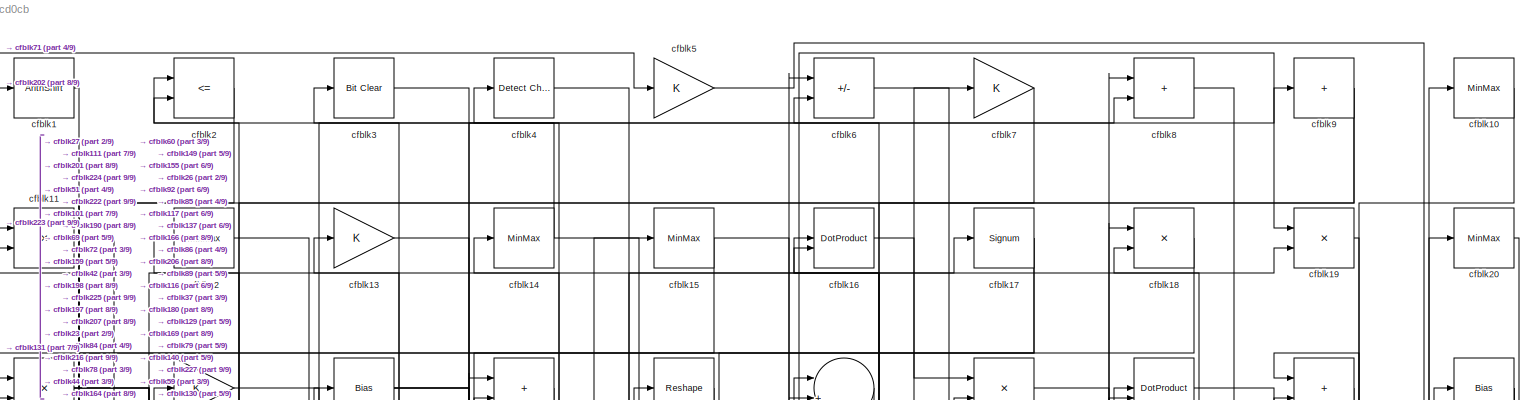
[diagram: root canvas - part 1/9, full width, top band]
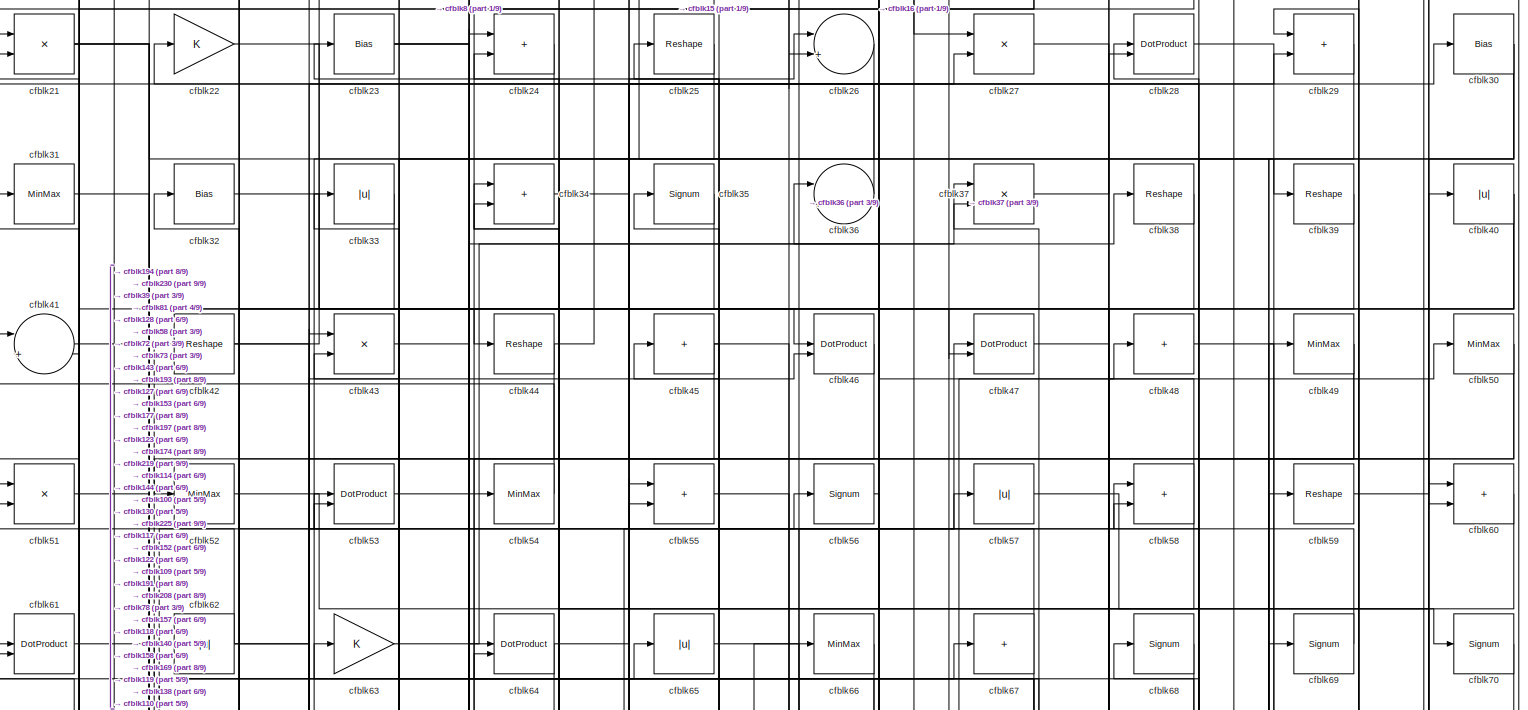
[diagram: root canvas - part 2/9, full width, top band]
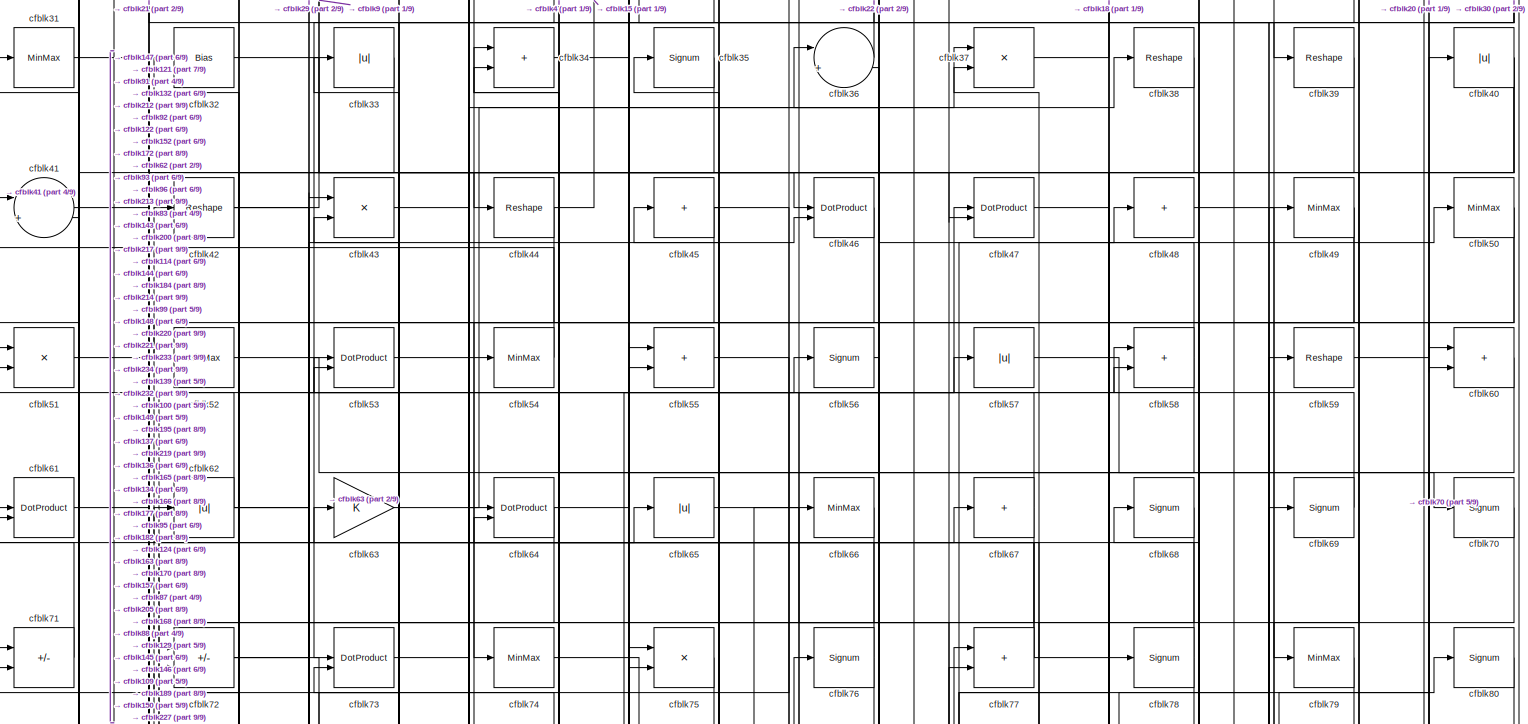
[diagram: root canvas - part 3/9, full width, top band]
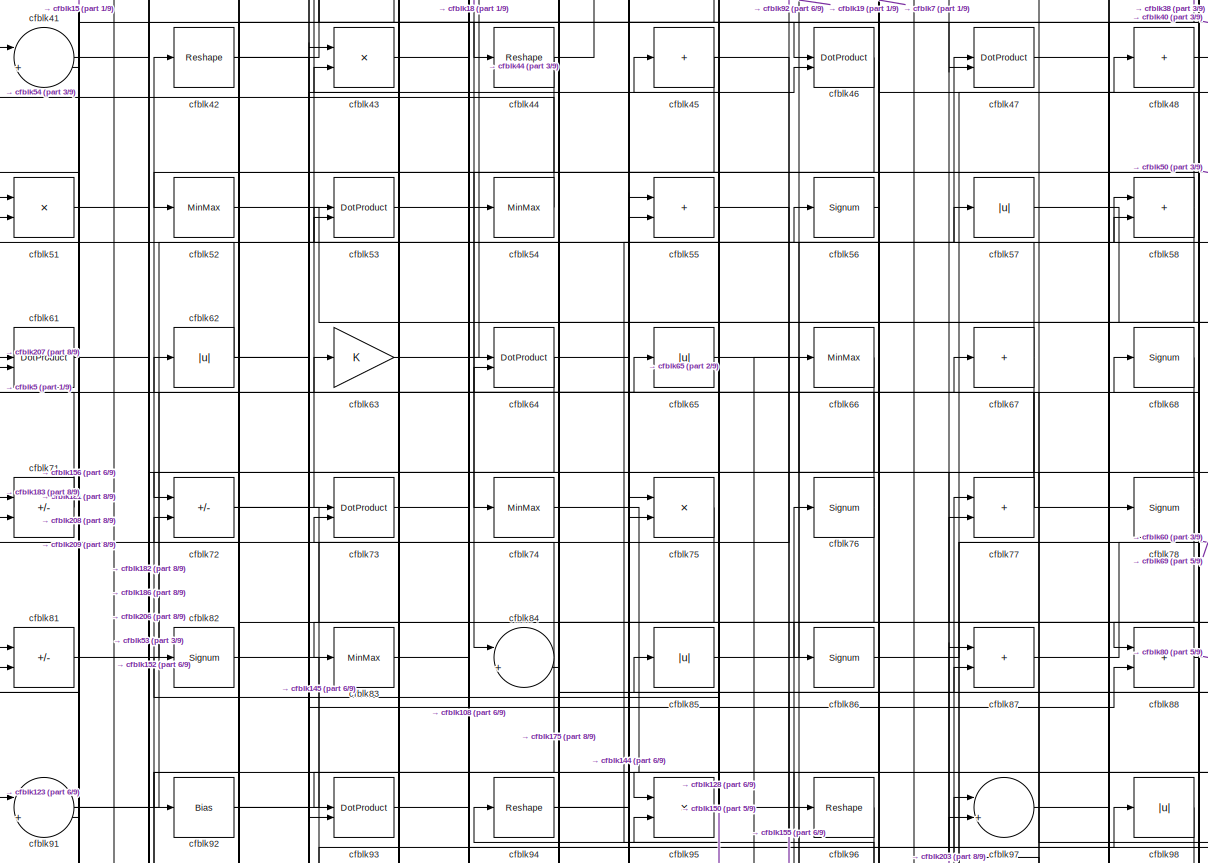
[diagram: root canvas - part 4/9, full width, top band]
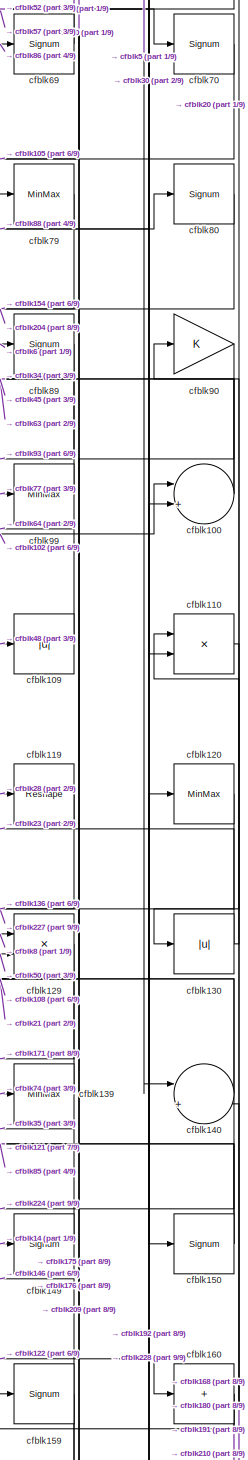
[diagram: root canvas - part 5/9, middle right region]
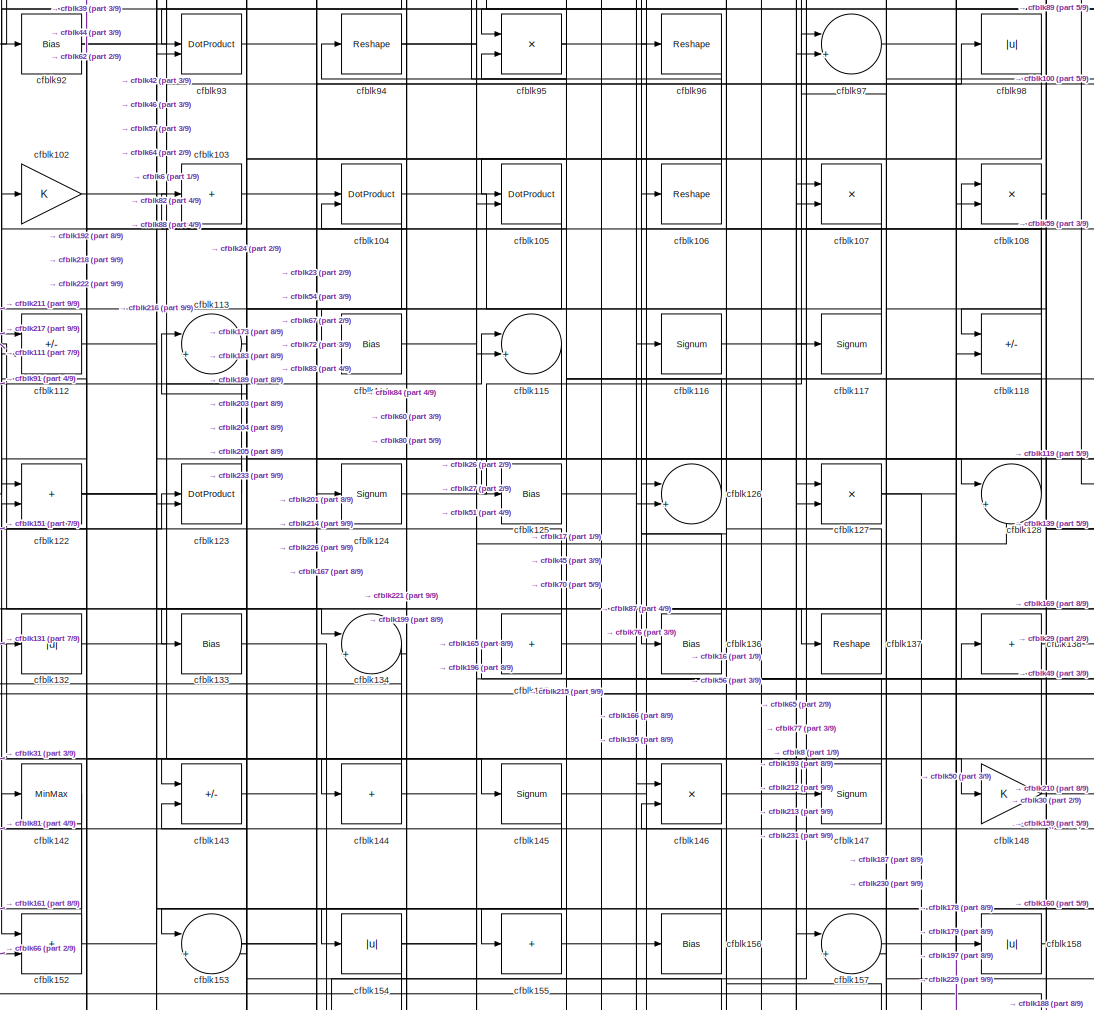
[diagram: root canvas - part 6/9, central region]
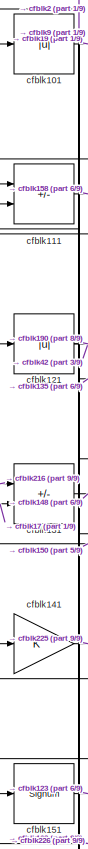
[diagram: root canvas - part 7/9, middle left region]
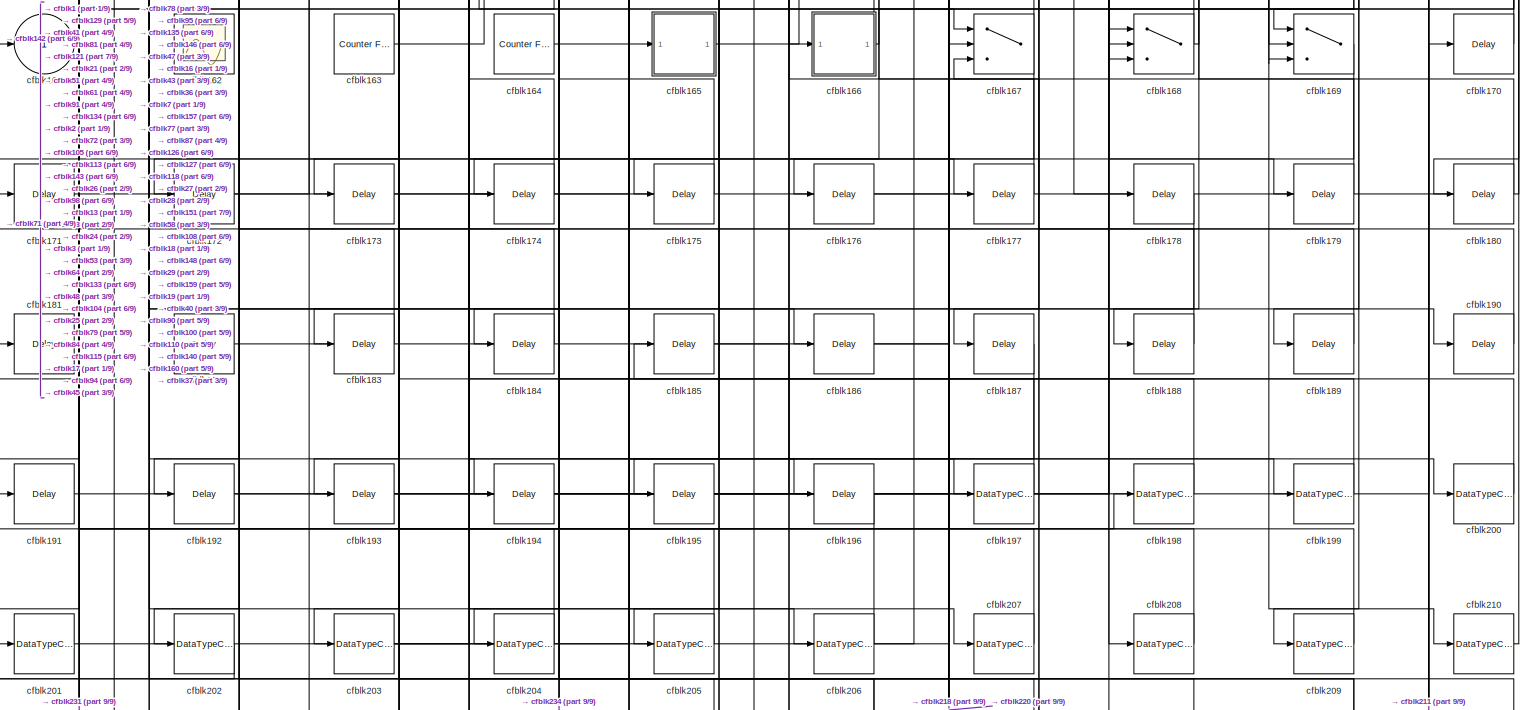
[diagram: root canvas - part 8/9, full width, bottom band]
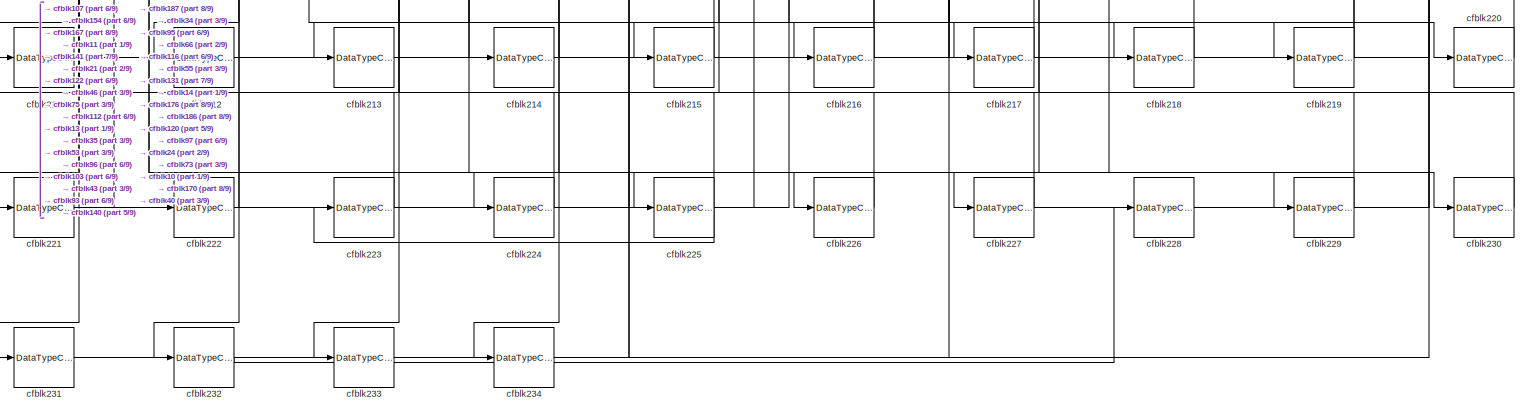
[diagram: root canvas - part 9/9, full width, bottom band]
MODEL slx_9354c0fcd0cb
KIND model
CONFIG AbsTol = auto
CONFIG EnableMultiTasking = off
CONFIG FixedStep = auto
CONFIG MaxStep = auto
CONFIG MinStep = auto
CONFIG RelTol = 1e-3
CONFIG SampleTimeConstraint = Unconstrained
CONFIG SolverName = VariableStepAuto
CONFIG StartTime = 0.0
CONFIG StopTime = 10.0
BLOCK [ArithShift] cfblk1
  BitShiftNumber = 8
  InputPortMap = u0
BLOCK [MinMax] cfblk10
BLOCK [Sum] cfblk100
  Inputs = |++
BLOCK [Abs] cfblk101
  SaturateOnIntegerOverflow = off
BLOCK [Gain] cfblk102
BLOCK [Sum] cfblk103
  IconShape = rectangular
  Inputs = +
BLOCK [DotProduct] cfblk104
  OutDataTypeStr = Inherit: Inherit via internal rule
BLOCK [DotProduct] cfblk105
  OutDataTypeStr = Inherit: Inherit via internal rule
BLOCK [Reshape] cfblk106
BLOCK [Product] cfblk107
  Inputs = */
  RndMeth = Zero
  SaturateOnIntegerOverflow = on
BLOCK [Product] cfblk108
  Inputs = */
  RndMeth = Zero
  SaturateOnIntegerOverflow = on
BLOCK [Abs] cfblk109
  SaturateOnIntegerOverflow = off
BLOCK [Product] cfblk11
  Inputs = */
  RndMeth = Zero
  SaturateOnIntegerOverflow = on
BLOCK [Product] cfblk110
  Inputs = */
  RndMeth = Zero
  SaturateOnIntegerOverflow = on
BLOCK [Sum] cfblk111
  IconShape = rectangular
  Inputs = +-
BLOCK [Sum] cfblk112
  IconShape = rectangular
  Inputs = +-
BLOCK [Sum] cfblk113
  Inputs = |++
BLOCK [Bias] cfblk114
  Bias = 0.0
  SaturateOnIntegerOverflow = off
BLOCK [Sum] cfblk115
  Inputs = |++
BLOCK [Signum] cfblk116
BLOCK [Signum] cfblk117
BLOCK [Sum] cfblk118
  IconShape = rectangular
  Inputs = +-
BLOCK [Reshape] cfblk119
BLOCK [MinMax] cfblk12
BLOCK [MinMax] cfblk120
BLOCK [Abs] cfblk121
  SaturateOnIntegerOverflow = off
BLOCK [Sum] cfblk122
  IconShape = rectangular
BLOCK [DotProduct] cfblk123
  OutDataTypeStr = Inherit: Inherit via internal rule
BLOCK [Signum] cfblk124
BLOCK [Bias] cfblk125
  Bias = 0.0
  SaturateOnIntegerOverflow = off
BLOCK [Sum] cfblk126
  Inputs = |++
BLOCK [Product] cfblk127
  Inputs = */
  RndMeth = Zero
  SaturateOnIntegerOverflow = on
BLOCK [Sum] cfblk128
  Inputs = |++
BLOCK [Product] cfblk129
  Inputs = */
  RndMeth = Zero
  SaturateOnIntegerOverflow = on
BLOCK [Gain] cfblk13
BLOCK [Abs] cfblk130
  SaturateOnIntegerOverflow = off
BLOCK [Sum] cfblk131
  IconShape = rectangular
  Inputs = +-
BLOCK [Abs] cfblk132
  SaturateOnIntegerOverflow = off
BLOCK [Bias] cfblk133
  Bias = 0.0
  SaturateOnIntegerOverflow = off
BLOCK [Sum] cfblk134
  Inputs = |++
BLOCK [Sum] cfblk135
  IconShape = rectangular
  Inputs = +
BLOCK [Bias] cfblk136
  Bias = 0.0
  SaturateOnIntegerOverflow = off
BLOCK [Reshape] cfblk137
BLOCK [Sum] cfblk138
  IconShape = rectangular
  Inputs = +
BLOCK [MinMax] cfblk139
BLOCK [MinMax] cfblk14
BLOCK [Sum] cfblk140
  Inputs = |++
BLOCK [Gain] cfblk141
BLOCK [MinMax] cfblk142
BLOCK [Sum] cfblk143
  IconShape = rectangular
  Inputs = +-
BLOCK [Sum] cfblk144
  IconShape = rectangular
  Inputs = +
BLOCK [Signum] cfblk145
BLOCK [Product] cfblk146
  Inputs = */
  RndMeth = Zero
  SaturateOnIntegerOverflow = on
BLOCK [Signum] cfblk147
BLOCK [Gain] cfblk148
BLOCK [Signum] cfblk149
BLOCK [MinMax] cfblk15
BLOCK [Signum] cfblk150
BLOCK [Signum] cfblk151
BLOCK [Sum] cfblk152
  IconShape = rectangular
BLOCK [Sum] cfblk153
  Inputs = |++
BLOCK [Abs] cfblk154
  SaturateOnIntegerOverflow = off
BLOCK [Sum] cfblk155
  IconShape = rectangular
  Inputs = +
BLOCK [Bias] cfblk156
  Bias = 0.0
  SaturateOnIntegerOverflow = off
BLOCK [Sum] cfblk157
  Inputs = |++
BLOCK [Abs] cfblk158
  SaturateOnIntegerOverflow = off
BLOCK [Signum] cfblk159
BLOCK [DotProduct] cfblk16
  OutDataTypeStr = Inherit: Inherit via internal rule
BLOCK [Sum] cfblk160
  IconShape = rectangular
  Inputs = +
BLOCK [Outport] cfblk161
  VectorParamsAs1DForOutWhenUnconnected = off
BLOCK [Scope] cfblk162
  Floating = on
  NumInputPorts = 1
  ScopeSpecificationString = Simulink.scopes.TimeScopeBlockCfg('CurrentConfiguration', extmgr.ConfigurationSet(extmgr.Configuration('Core','General UI',true,'FigureColor',[0.156862745098039 0.156862745098039 0.156862745098039]),extmgr.Configuration('Core','Source UI',true),extmgr.Configuration('Sources','WiredSimulink',true,'DataLoggingVariableName','ScopeData1','DataLoggingSaveFormat','StructureWithTime','DataLoggingLimitDat...<+2713ch>
BLOCK [Reference] cfblk163  REF=hdlsllib/Sources/Counter
Free-Running
  SourceBlock = hdlsllib/Sources/Counter\nFree-Running
  SourceType = Counter Free-Running
BLOCK [Reference] cfblk164  REF=hdlsllib/Sources/Counter
Free-Running
  SourceBlock = hdlsllib/Sources/Counter\nFree-Running
  SourceType = Counter Free-Running
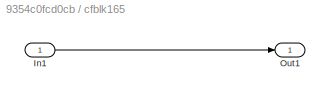
BLOCK [SubSystem] cfblk165
  LibrarySourceBlock = hdlsllib/Ports &\nSubsystems/Subsystem
BLOCK [Inport] cfblk165/In1
BLOCK [Outport] cfblk165/Out1
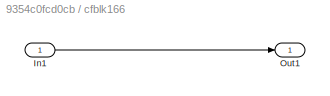
BLOCK [SubSystem] cfblk166
  LibrarySourceBlock = hdlsllib/Ports &\nSubsystems/Subsystem
BLOCK [Inport] cfblk166/In1
BLOCK [Outport] cfblk166/Out1
BLOCK [Switch] cfblk167
  InputSameDT = off
  SaturateOnIntegerOverflow = off
BLOCK [Switch] cfblk168
  InputSameDT = off
  SaturateOnIntegerOverflow = off
BLOCK [Switch] cfblk169
  InputSameDT = off
  SaturateOnIntegerOverflow = off
BLOCK [Signum] cfblk17
BLOCK [Delay] cfblk170
  InputPortMap = u0
  SampleTime = 1
BLOCK [Delay] cfblk171
  InputPortMap = u0
  SampleTime = 1
BLOCK [Delay] cfblk172
  InputPortMap = u0
  SampleTime = 1
BLOCK [Delay] cfblk173
  InputPortMap = u0
  SampleTime = 1
BLOCK [Delay] cfblk174
  InputPortMap = u0
  SampleTime = 1
BLOCK [Delay] cfblk175
  InputPortMap = u0
  SampleTime = 1
BLOCK [Delay] cfblk176
  InputPortMap = u0
  SampleTime = 1
BLOCK [Delay] cfblk177
  InputPortMap = u0
  SampleTime = 1
BLOCK [Delay] cfblk178
  InputPortMap = u0
  SampleTime = 1
BLOCK [Delay] cfblk179
  InputPortMap = u0
  SampleTime = 1
BLOCK [Product] cfblk18
  Inputs = */
  RndMeth = Zero
  SaturateOnIntegerOverflow = on
BLOCK [Delay] cfblk180
  InputPortMap = u0
  SampleTime = 1
BLOCK [Delay] cfblk181
  InputPortMap = u0
  SampleTime = 1
BLOCK [Delay] cfblk182
  InputPortMap = u0
  SampleTime = 1
BLOCK [Delay] cfblk183
  InputPortMap = u0
  SampleTime = 1
BLOCK [Delay] cfblk184
  InputPortMap = u0
  SampleTime = 1
BLOCK [Delay] cfblk185
  InputPortMap = u0
  SampleTime = 1
BLOCK [Delay] cfblk186
  InputPortMap = u0
  SampleTime = 1
BLOCK [Delay] cfblk187
  InputPortMap = u0
  SampleTime = 1
BLOCK [Delay] cfblk188
  InputPortMap = u0
  SampleTime = 1
BLOCK [Delay] cfblk189
  InputPortMap = u0
  SampleTime = 1
BLOCK [Product] cfblk19
  Inputs = */
  RndMeth = Zero
  SaturateOnIntegerOverflow = on
BLOCK [Delay] cfblk190
  InputPortMap = u0
  SampleTime = 1
BLOCK [Delay] cfblk191
  InputPortMap = u0
  SampleTime = 1
BLOCK [Delay] cfblk192
  InputPortMap = u0
  SampleTime = 1
BLOCK [Delay] cfblk193
  InputPortMap = u0
  SampleTime = 1
BLOCK [Delay] cfblk194
  InputPortMap = u0
  SampleTime = 1
BLOCK [Delay] cfblk195
  InputPortMap = u0
  SampleTime = 1
BLOCK [Delay] cfblk196
  InputPortMap = u0
  SampleTime = 1
BLOCK [DataTypeConversion] cfblk197
  RndMeth = Floor
  SaturateOnIntegerOverflow = off
BLOCK [DataTypeConversion] cfblk198
  OutDataTypeStr = uint8
  RndMeth = Floor
  SaturateOnIntegerOverflow = off
BLOCK [DataTypeConversion] cfblk199
  OutDataTypeStr = uint8
  RndMeth = Floor
  SaturateOnIntegerOverflow = off
BLOCK [RelationalOperator] cfblk2
  InputSameDT = off
  Operator = <=
  OutDataTypeStr = boolean
BLOCK [MinMax] cfblk20
BLOCK [DataTypeConversion] cfblk200
  OutDataTypeStr = uint8
  RndMeth = Floor
  SaturateOnIntegerOverflow = off
BLOCK [DataTypeConversion] cfblk201
  OutDataTypeStr = uint8
  RndMeth = Floor
  SaturateOnIntegerOverflow = off
BLOCK [DataTypeConversion] cfblk202
  OutDataTypeStr = uint8
  RndMeth = Floor
  SaturateOnIntegerOverflow = off
BLOCK [DataTypeConversion] cfblk203
  RndMeth = Floor
  SaturateOnIntegerOverflow = off
BLOCK [DataTypeConversion] cfblk204
  OutDataTypeStr = uint8
  RndMeth = Floor
  SaturateOnIntegerOverflow = off
BLOCK [DataTypeConversion] cfblk205
  OutDataTypeStr = uint8
  RndMeth = Floor
  SaturateOnIntegerOverflow = off
BLOCK [DataTypeConversion] cfblk206
  RndMeth = Floor
  SaturateOnIntegerOverflow = off
BLOCK [DataTypeConversion] cfblk207
  OutDataTypeStr = uint8
  RndMeth = Floor
  SaturateOnIntegerOverflow = off
BLOCK [DataTypeConversion] cfblk208
  OutDataTypeStr = uint8
  RndMeth = Floor
  SaturateOnIntegerOverflow = off
BLOCK [DataTypeConversion] cfblk209
  OutDataTypeStr = uint8
  RndMeth = Floor
  SaturateOnIntegerOverflow = off
BLOCK [Product] cfblk21
  Inputs = */
  RndMeth = Zero
  SaturateOnIntegerOverflow = on
BLOCK [DataTypeConversion] cfblk210
  OutDataTypeStr = uint8
  RndMeth = Floor
  SaturateOnIntegerOverflow = off
BLOCK [DataTypeConversion] cfblk211
  OutDataTypeStr = uint8
  RndMeth = Floor
  SaturateOnIntegerOverflow = off
BLOCK [DataTypeConversion] cfblk212
  OutDataTypeStr = uint8
  RndMeth = Floor
  SaturateOnIntegerOverflow = off
BLOCK [DataTypeConversion] cfblk213
  OutDataTypeStr = uint8
  RndMeth = Floor
  SaturateOnIntegerOverflow = off
BLOCK [DataTypeConversion] cfblk214
  OutDataTypeStr = uint8
  RndMeth = Floor
  SaturateOnIntegerOverflow = off
BLOCK [DataTypeConversion] cfblk215
  OutDataTypeStr = uint8
  RndMeth = Floor
  SaturateOnIntegerOverflow = off
BLOCK [DataTypeConversion] cfblk216
  RndMeth = Floor
  SaturateOnIntegerOverflow = off
BLOCK [DataTypeConversion] cfblk217
  OutDataTypeStr = uint8
  RndMeth = Floor
  SaturateOnIntegerOverflow = off
BLOCK [DataTypeConversion] cfblk218
  OutDataTypeStr = uint8
  RndMeth = Floor
  SaturateOnIntegerOverflow = off
BLOCK [DataTypeConversion] cfblk219
  RndMeth = Floor
  SaturateOnIntegerOverflow = off
BLOCK [Gain] cfblk22
BLOCK [DataTypeConversion] cfblk220
  OutDataTypeStr = uint8
  RndMeth = Floor
  SaturateOnIntegerOverflow = off
BLOCK [DataTypeConversion] cfblk221
  OutDataTypeStr = uint8
  RndMeth = Floor
  SaturateOnIntegerOverflow = off
BLOCK [DataTypeConversion] cfblk222
  RndMeth = Floor
  SaturateOnIntegerOverflow = off
BLOCK [DataTypeConversion] cfblk223
  OutDataTypeStr = uint8
  RndMeth = Floor
  SaturateOnIntegerOverflow = off
BLOCK [DataTypeConversion] cfblk224
  OutDataTypeStr = uint8
  RndMeth = Floor
  SaturateOnIntegerOverflow = off
BLOCK [DataTypeConversion] cfblk225
  RndMeth = Floor
  SaturateOnIntegerOverflow = off
BLOCK [DataTypeConversion] cfblk226
  OutDataTypeStr = uint8
  RndMeth = Floor
  SaturateOnIntegerOverflow = off
BLOCK [DataTypeConversion] cfblk227
  RndMeth = Floor
  SaturateOnIntegerOverflow = off
BLOCK [DataTypeConversion] cfblk228
  OutDataTypeStr = uint8
  RndMeth = Floor
  SaturateOnIntegerOverflow = off
BLOCK [DataTypeConversion] cfblk229
  OutDataTypeStr = uint8
  RndMeth = Floor
  SaturateOnIntegerOverflow = off
BLOCK [Bias] cfblk23
  Bias = 0.0
  SaturateOnIntegerOverflow = off
BLOCK [DataTypeConversion] cfblk230
  OutDataTypeStr = uint8
  RndMeth = Floor
  SaturateOnIntegerOverflow = off
BLOCK [DataTypeConversion] cfblk231
  OutDataTypeStr = uint8
  RndMeth = Floor
  SaturateOnIntegerOverflow = off
BLOCK [DataTypeConversion] cfblk232
  RndMeth = Floor
  SaturateOnIntegerOverflow = off
BLOCK [DataTypeConversion] cfblk233
  OutDataTypeStr = uint8
  RndMeth = Floor
  SaturateOnIntegerOverflow = off
BLOCK [DataTypeConversion] cfblk234
  OutDataTypeStr = uint8
  RndMeth = Floor
  SaturateOnIntegerOverflow = off
BLOCK [Sum] cfblk24
  IconShape = rectangular
BLOCK [Reshape] cfblk25
BLOCK [Sum] cfblk26
  Inputs = |++
BLOCK [Product] cfblk27
  Inputs = */
  RndMeth = Zero
  SaturateOnIntegerOverflow = on
BLOCK [DotProduct] cfblk28
  OutDataTypeStr = Inherit: Inherit via internal rule
BLOCK [Sum] cfblk29
  IconShape = rectangular
BLOCK [Reference] cfblk3  REF=simulink/Logic and Bit
Operations/Bit Clear
  LibrarySourceBlock = hdlsllib/Logic and Bit\nOperations/Bit Clear
  SourceBlock = simulink/Logic and Bit\nOperations/Bit Clear
  SourceType = Bit Clear
BLOCK [Bias] cfblk30
  Bias = 0.0
  SaturateOnIntegerOverflow = off
BLOCK [MinMax] cfblk31
BLOCK [Bias] cfblk32
  Bias = 0.0
  SaturateOnIntegerOverflow = off
BLOCK [Abs] cfblk33
  SaturateOnIntegerOverflow = off
BLOCK [Sum] cfblk34
  IconShape = rectangular
BLOCK [Signum] cfblk35
BLOCK [Sum] cfblk36
  Inputs = |++
BLOCK [Product] cfblk37
  Inputs = */
  RndMeth = Zero
  SaturateOnIntegerOverflow = on
BLOCK [Reshape] cfblk38
BLOCK [Reshape] cfblk39
BLOCK [Reference] cfblk4  REF=simulink/Logic and Bit
Operations/Detect
Change
  LibrarySourceBlock = hdlsllib/Logic and Bit\nOperations/Detect\nChange
  SourceBlock = simulink/Logic and Bit\nOperations/Detect\nChange
  SourceType = Detect Change
BLOCK [Abs] cfblk40
  SaturateOnIntegerOverflow = off
BLOCK [Sum] cfblk41
  Inputs = |++
BLOCK [Reshape] cfblk42
BLOCK [Product] cfblk43
  Inputs = */
  RndMeth = Zero
  SaturateOnIntegerOverflow = on
BLOCK [Reshape] cfblk44
BLOCK [Sum] cfblk45
  IconShape = rectangular
  Inputs = +
BLOCK [DotProduct] cfblk46
  OutDataTypeStr = Inherit: Inherit via internal rule
BLOCK [DotProduct] cfblk47
  OutDataTypeStr = Inherit: Inherit via internal rule
BLOCK [Sum] cfblk48
  IconShape = rectangular
  Inputs = +
BLOCK [MinMax] cfblk49
BLOCK [Gain] cfblk5
BLOCK [MinMax] cfblk50
BLOCK [Product] cfblk51
  Inputs = */
  RndMeth = Zero
  SaturateOnIntegerOverflow = on
BLOCK [MinMax] cfblk52
BLOCK [DotProduct] cfblk53
  OutDataTypeStr = Inherit: Inherit via internal rule
BLOCK [MinMax] cfblk54
BLOCK [Sum] cfblk55
  IconShape = rectangular
BLOCK [Signum] cfblk56
BLOCK [Abs] cfblk57
  SaturateOnIntegerOverflow = off
BLOCK [Sum] cfblk58
  IconShape = rectangular
BLOCK [Reshape] cfblk59
BLOCK [Sum] cfblk6
  IconShape = rectangular
  Inputs = +-
BLOCK [Sum] cfblk60
  IconShape = rectangular
BLOCK [DotProduct] cfblk61
  OutDataTypeStr = Inherit: Inherit via internal rule
BLOCK [Abs] cfblk62
  SaturateOnIntegerOverflow = off
BLOCK [Gain] cfblk63
BLOCK [DotProduct] cfblk64
  OutDataTypeStr = Inherit: Inherit via internal rule
BLOCK [Abs] cfblk65
  SaturateOnIntegerOverflow = off
BLOCK [MinMax] cfblk66
BLOCK [Sum] cfblk67
  IconShape = rectangular
  Inputs = +
BLOCK [Signum] cfblk68
BLOCK [Signum] cfblk69
BLOCK [Gain] cfblk7
BLOCK [Signum] cfblk70
BLOCK [Sum] cfblk71
  IconShape = rectangular
  Inputs = +-
BLOCK [Sum] cfblk72
  IconShape = rectangular
  Inputs = +-
BLOCK [DotProduct] cfblk73
  OutDataTypeStr = Inherit: Inherit via internal rule
BLOCK [MinMax] cfblk74
BLOCK [Product] cfblk75
  Inputs = */
  RndMeth = Zero
  SaturateOnIntegerOverflow = on
BLOCK [Signum] cfblk76
BLOCK [Sum] cfblk77
  IconShape = rectangular
BLOCK [Signum] cfblk78
BLOCK [MinMax] cfblk79
BLOCK [Sum] cfblk8
  IconShape = rectangular
BLOCK [Signum] cfblk80
BLOCK [Sum] cfblk81
  IconShape = rectangular
  Inputs = +-
BLOCK [Signum] cfblk82
BLOCK [MinMax] cfblk83
BLOCK [Sum] cfblk84
  Inputs = |++
BLOCK [Abs] cfblk85
  SaturateOnIntegerOverflow = off
BLOCK [Signum] cfblk86
BLOCK [Sum] cfblk87
  IconShape = rectangular
BLOCK [Sum] cfblk88
  IconShape = rectangular
BLOCK [Signum] cfblk89
BLOCK [Sum] cfblk9
  IconShape = rectangular
  Inputs = +
BLOCK [Gain] cfblk90
BLOCK [Sum] cfblk91
  Inputs = |++
BLOCK [Bias] cfblk92
  Bias = 0.0
  SaturateOnIntegerOverflow = off
BLOCK [DotProduct] cfblk93
  OutDataTypeStr = Inherit: Inherit via internal rule
BLOCK [Reshape] cfblk94
BLOCK [Product] cfblk95
  Inputs = */
  RndMeth = Zero
  SaturateOnIntegerOverflow = on
BLOCK [Reshape] cfblk96
BLOCK [Sum] cfblk97
  Inputs = |++
BLOCK [Abs] cfblk98
  SaturateOnIntegerOverflow = off
BLOCK [MinMax] cfblk99
NET cfblk100:1 -> cfblk45:1, cfblk63:1
LINE cfblk101:1 -> cfblk19:2
LINE cfblk102:1 -> cfblk100:1
LINE cfblk103:1 -> cfblk214:1
NET cfblk104:1 -> cfblk127:1, cfblk133:1
LINE cfblk105:1 -> cfblk183:1
LINE cfblk106:1 -> cfblk94:1
LINE cfblk107:1 -> cfblk211:1
NET cfblk108:1 -> cfblk187:1, cfblk188:1
LINE cfblk109:1 -> cfblk64:2
LINE cfblk10:1 -> cfblk79:1
LINE cfblk110:1 -> cfblk180:1
LINE cfblk111:1 -> cfblk158:1
LINE cfblk112:1 -> cfblk216:1
LINE cfblk113:1 -> cfblk203:1
LINE cfblk114:1 -> cfblk26:1
LINE cfblk115:1 -> cfblk153:1
LINE cfblk116:1 -> cfblk8:1
LINE cfblk117:1 -> cfblk16:1
NET cfblk118:1 -> cfblk106:1, cfblk125:1, cfblk62:1
LINE cfblk119:1 -> cfblk136:1
LINE cfblk11:1 -> cfblk222:1
LINE cfblk120:1 -> cfblk227:1
NET cfblk121:1 -> cfblk190:1, cfblk42:1
NET cfblk122:1 -> cfblk134:1, cfblk160:1, cfblk57:1
LINE cfblk123:1 -> cfblk91:1
LINE cfblk124:1 -> cfblk77:1
LINE cfblk125:1 -> cfblk156:1
LINE cfblk126:1 -> cfblk102:1
NET cfblk127:1 -> cfblk178:1, cfblk179:1
LINE cfblk128:1 -> cfblk82:1
LINE cfblk129:1 -> cfblk171:1
LINE cfblk12:1 -> cfblk159:1
NET cfblk130:1 -> cfblk110:1, cfblk23:1
LINE cfblk131:1 -> cfblk148:1
LINE cfblk132:1 -> cfblk115:1
LINE cfblk133:1 -> cfblk167:1
LINE cfblk134:1 -> cfblk192:1
NET cfblk135:1 -> cfblk111:2, cfblk166:1
LINE cfblk136:1 -> cfblk76:1
LINE cfblk137:1 -> cfblk6:2
LINE cfblk138:1 -> cfblk29:1
LINE cfblk139:1 -> cfblk108:1
LINE cfblk13:1 -> cfblk207:1
NET cfblk140:1 -> cfblk21:2, cfblk224:1, cfblk28:1
LINE cfblk141:1 -> cfblk225:1
LINE cfblk142:1 -> cfblk161:1
LINE cfblk143:1 -> cfblk54:1
NET cfblk144:1 -> cfblk27:2, cfblk51:2
NET cfblk145:1 -> cfblk153:2, cfblk49:1
LINE cfblk146:1 -> cfblk59:1
LINE cfblk147:1 -> cfblk135:1
NET cfblk148:1 -> cfblk210:1, cfblk56:1
LINE cfblk149:1 -> cfblk35:1
NET cfblk14:1 -> cfblk149:1, cfblk2:1
NET cfblk150:1 -> cfblk121:1, cfblk85:1
LINE cfblk151:1 -> cfblk123:1
NET cfblk152:1 -> cfblk142:1, cfblk46:2
NET cfblk153:1 -> cfblk67:1, cfblk98:1
NET cfblk154:1 -> cfblk128:2, cfblk138:1, cfblk221:1
LINE cfblk155:1 -> cfblk87:2
LINE cfblk156:1 -> cfblk81:1
LINE cfblk157:1 -> cfblk50:1
LINE cfblk158:1 -> cfblk68:1
NET cfblk159:1 -> cfblk146:2, cfblk175:1, cfblk176:1
NET cfblk15:1 -> cfblk26:2, cfblk51:1
NET cfblk160:1 -> cfblk168:2, cfblk191:1
LINE cfblk163:1 -> cfblk48:1
LINE cfblk164:1 -> cfblk17:1
LINE cfblk165/In1:1 -> cfblk165/Out1:1
LINE cfblk165:1 -> cfblk47:1
LINE cfblk166/In1:1 -> cfblk166/Out1:1
NET cfblk166:1 -> cfblk16:2, cfblk43:2
NET cfblk167:1 -> cfblk126:1, cfblk231:1
NET cfblk168:1 -> cfblk151:1, cfblk58:1
LINE cfblk169:1 -> cfblk172:1
LINE cfblk16:1 -> cfblk27:1
LINE cfblk170:1 -> cfblk37:2
LINE cfblk171:1 -> cfblk140:2
LINE cfblk172:1 -> cfblk43:1
LINE cfblk173:1 -> cfblk115:2
LINE cfblk174:1 -> cfblk24:1
LINE cfblk175:1 -> cfblk84:2
LINE cfblk176:1 -> cfblk218:1
LINE cfblk177:1 -> cfblk36:1
LINE cfblk178:1 -> cfblk202:1
LINE cfblk179:1 -> cfblk146:1
NET cfblk17:1 -> cfblk131:2, cfblk155:1
LINE cfblk180:1 -> cfblk18:2
LINE cfblk181:1 -> cfblk41:2
LINE cfblk182:1 -> cfblk77:2
LINE cfblk183:1 -> cfblk71:1
LINE cfblk184:1 -> cfblk72:2
LINE cfblk185:1 -> cfblk199:1
LINE cfblk186:1 -> cfblk220:1
LINE cfblk187:1 -> cfblk234:1
LINE cfblk188:1 -> cfblk167:3
LINE cfblk189:1 -> cfblk143:2
LINE cfblk18:1 -> cfblk84:1
LINE cfblk190:1 -> cfblk2:2
LINE cfblk191:1 -> cfblk28:2
LINE cfblk192:1 -> cfblk100:2
LINE cfblk193:1 -> cfblk157:1
LINE cfblk194:1 -> cfblk167:2
LINE cfblk195:1 -> cfblk126:2
LINE cfblk196:1 -> cfblk198:1
NET cfblk197:1 -> cfblk118:2, cfblk64:1
LINE cfblk198:1 -> cfblk3:1
LINE cfblk199:1 -> cfblk104:2
LINE cfblk19:1 -> cfblk169:1
LINE cfblk1:1 -> cfblk201:1
LINE cfblk200:1 -> cfblk185:1
LINE cfblk201:1 -> cfblk104:1
LINE cfblk202:1 -> cfblk1:1
NET cfblk203:1 -> cfblk105:2, cfblk87:1
LINE cfblk204:1 -> cfblk113:1
LINE cfblk205:1 -> cfblk113:2
NET cfblk206:1 -> cfblk181:1, cfblk7:1
LINE cfblk207:1 -> cfblk61:1
LINE cfblk208:1 -> cfblk61:2
LINE cfblk209:1 -> cfblk81:2
LINE cfblk20:1 -> cfblk130:1
LINE cfblk210:1 -> cfblk90:1
LINE cfblk211:1 -> cfblk170:1
LINE cfblk212:1 -> cfblk107:1
LINE cfblk213:1 -> cfblk107:2
LINE cfblk214:1 -> cfblk34:2
LINE cfblk215:1 -> cfblk103:1
NET cfblk216:1 -> cfblk131:1, cfblk14:1
LINE cfblk217:1 -> cfblk112:1
LINE cfblk218:1 -> cfblk112:2
NET cfblk219:1 -> cfblk24:2, cfblk73:2
NET cfblk21:1 -> cfblk194:1, cfblk230:1, cfblk39:1
LINE cfblk220:1 -> cfblk55:1
LINE cfblk221:1 -> cfblk55:2
NET cfblk222:1 -> cfblk116:1, cfblk122:2
LINE cfblk223:1 -> cfblk11:1
LINE cfblk224:1 -> cfblk11:2
NET cfblk225:1 -> cfblk13:1, cfblk223:1, cfblk66:1
LINE cfblk226:1 -> cfblk141:1
NET cfblk227:1 -> cfblk10:1, cfblk53:2
LINE cfblk228:1 -> cfblk120:1
LINE cfblk229:1 -> cfblk95:2
LINE cfblk22:1 -> cfblk78:1
LINE cfblk230:1 -> cfblk97:1
LINE cfblk231:1 -> cfblk97:2
NET cfblk232:1 -> cfblk228:1, cfblk40:1
LINE cfblk233:1 -> cfblk75:1
LINE cfblk234:1 -> cfblk75:2
NET cfblk23:1 -> cfblk127:2, cfblk177:1, cfblk8:2
LINE cfblk24:1 -> cfblk143:1
LINE cfblk25:1 -> cfblk174:1
LINE cfblk26:1 -> cfblk193:1
LINE cfblk27:1 -> cfblk208:1
LINE cfblk28:1 -> cfblk119:1
LINE cfblk29:1 -> cfblk169:3
LINE cfblk2:1 -> cfblk111:1
NET cfblk30:1 -> cfblk110:2, cfblk118:1, cfblk73:1
LINE cfblk31:1 -> cfblk147:1
LINE cfblk32:1 -> cfblk47:2
LINE cfblk33:1 -> cfblk52:1
LINE cfblk34:1 -> cfblk46:1
LINE cfblk35:1 -> cfblk213:1
LINE cfblk36:1 -> cfblk22:1
LINE cfblk37:1 -> cfblk18:1
LINE cfblk38:1 -> cfblk91:2
LINE cfblk39:1 -> cfblk92:1
LINE cfblk3:1 -> cfblk197:1
NET cfblk40:1 -> cfblk168:3, cfblk189:1, cfblk83:1
LINE cfblk41:1 -> cfblk44:1
NET cfblk42:1 -> cfblk96:1, cfblk9:1
LINE cfblk43:1 -> cfblk217:1
NET cfblk44:1 -> cfblk132:1, cfblk15:1
NET cfblk45:1 -> cfblk137:1, cfblk195:1, cfblk74:1
LINE cfblk46:1 -> cfblk212:1
LINE cfblk47:1 -> cfblk168:1
LINE cfblk48:1 -> cfblk109:1
NET cfblk49:1 -> cfblk114:1, cfblk93:2
LINE cfblk4:1 -> cfblk60:2
NET cfblk50:1 -> cfblk129:2, cfblk88:1
LINE cfblk51:1 -> cfblk182:1
LINE cfblk52:1 -> cfblk70:1
LINE cfblk53:1 -> cfblk200:1
LINE cfblk54:1 -> cfblk41:1
LINE cfblk55:1 -> cfblk219:1
LINE cfblk56:1 -> cfblk95:1
LINE cfblk57:1 -> cfblk150:1
NET cfblk58:1 -> cfblk184:1, cfblk36:2
LINE cfblk59:1 -> cfblk20:1
LINE cfblk5:1 -> cfblk140:1
LINE cfblk60:1 -> cfblk144:1
LINE cfblk61:1 -> cfblk206:1
NET cfblk62:1 -> cfblk128:1, cfblk21:1, cfblk58:2
LINE cfblk63:1 -> cfblk37:1
NET cfblk64:1 -> cfblk123:2, cfblk30:1
LINE cfblk65:1 -> cfblk117:1
LINE cfblk66:1 -> cfblk152:2
NET cfblk67:1 -> cfblk122:1, cfblk25:1
LINE cfblk68:1 -> cfblk157:2
LINE cfblk69:1 -> cfblk12:1
LINE cfblk6:1 -> cfblk89:1
LINE cfblk70:1 -> cfblk105:1
LINE cfblk71:1 -> cfblk5:1
NET cfblk72:1 -> cfblk124:1, cfblk29:2
LINE cfblk73:1 -> cfblk38:1
LINE cfblk74:1 -> cfblk139:1
LINE cfblk75:1 -> cfblk232:1
NET cfblk76:1 -> cfblk134:2, cfblk31:1
NET cfblk77:1 -> cfblk32:1, cfblk33:1, cfblk99:1
NET cfblk78:1 -> cfblk205:1, cfblk4:1
LINE cfblk79:1 -> cfblk204:1
LINE cfblk7:1 -> cfblk86:1
LINE cfblk80:1 -> cfblk154:1
LINE cfblk81:1 -> cfblk65:1
LINE cfblk82:1 -> cfblk145:1
LINE cfblk83:1 -> cfblk108:2
NET cfblk84:1 -> cfblk152:1, cfblk71:2
LINE cfblk85:1 -> cfblk19:1
LINE cfblk86:1 -> cfblk69:1
LINE cfblk87:1 -> cfblk60:1
LINE cfblk88:1 -> cfblk80:1
LINE cfblk89:1 -> cfblk93:1
LINE cfblk8:1 -> cfblk129:1
LINE cfblk90:1 -> cfblk209:1
NET cfblk91:1 -> cfblk186:1, cfblk53:1
NET cfblk92:1 -> cfblk6:1, cfblk88:2
LINE cfblk93:1 -> cfblk226:1
NET cfblk94:1 -> cfblk165:1, cfblk196:1
NET cfblk95:1 -> cfblk169:2, cfblk215:1
LINE cfblk96:1 -> cfblk233:1
LINE cfblk97:1 -> cfblk229:1
LINE cfblk98:1 -> cfblk173:1
LINE cfblk99:1 -> cfblk34:1
NET cfblk9:1 -> cfblk101:1, cfblk72:1
note: NET lines group one-source signal fan-out (src -> all destinations, sorted); 1:1 wires keep LINE
